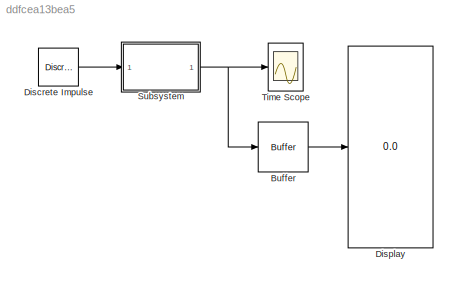
MODEL slx_ddfcea13bea5
KIND model
BLOCK [Buffer] Buffer
  N = 10
BLOCK [Reference] Discrete Impulse  REF=dspsrcs4/Discrete 
Impulse
  Delay = 0
  FrameSample = 1
  LastOutDataTypeStr = double
  OutDataTypeStr = double
  Ports = [0, 1]
  SampleTime = 1
  SourceBlock = dspsrcs4/Discrete \nImpulse
  SourceType = Discrete Impulse
  additionalParams = off
  allowOverrides = on
  dataType = double
  fracBitsMode = Best precision
  isSigned = on
  numFracBits = 15
  udDataType = sfix(16)
  wordLen = 16
BLOCK [Display] Display
  Decimation = 1
  Ports = [1]
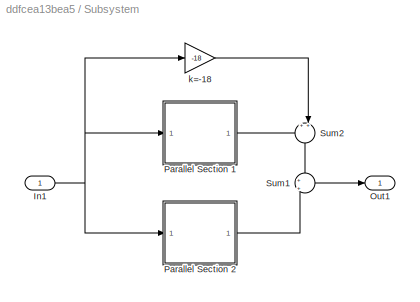
BLOCK [SubSystem] Subsystem
  Ports = [1, 1]
  RequestExecContextInheritance = off
BLOCK [Inport] Subsystem/In1
  IconDisplay = Port number
BLOCK [Outport] Subsystem/Out1
  IconDisplay = Port number
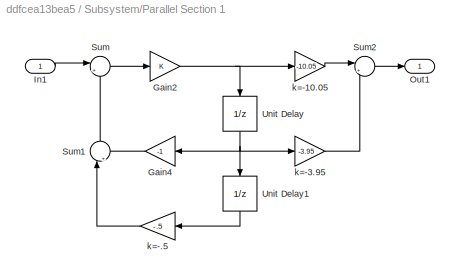
BLOCK [SubSystem] Subsystem/Parallel Section 1
  Ports = [1, 1]
  RequestExecContextInheritance = off
BLOCK [Gain] Subsystem/Parallel Section 1/Gain2
  OutDataTypeStr = Inherit: Inherit via internal rule
  ParamDataTypeStr = Inherit: Inherit via internal rule
  SaturateOnIntegerOverflow = off
BLOCK [Gain] Subsystem/Parallel Section 1/Gain4
  Gain = -1
  OutDataTypeStr = Inherit: Inherit via internal rule
  ParamDataTypeStr = Inherit: Inherit via internal rule
  SaturateOnIntegerOverflow = off
BLOCK [Inport] Subsystem/Parallel Section 1/In1
  IconDisplay = Port number
BLOCK [Outport] Subsystem/Parallel Section 1/Out1
  IconDisplay = Port number
BLOCK [Sum] Subsystem/Parallel Section 1/Sum
  IconShape = round
  InputSameDT = off
  Inputs = |++
  OutDataTypeStr = Inherit: Inherit via internal rule
  Ports = [2, 1]
  SaturateOnIntegerOverflow = off
BLOCK [Sum] Subsystem/Parallel Section 1/Sum1
  IconShape = round
  InputSameDT = off
  Inputs = |++
  OutDataTypeStr = Inherit: Inherit via internal rule
  Ports = [2, 1]
  SaturateOnIntegerOverflow = off
BLOCK [Sum] Subsystem/Parallel Section 1/Sum2
  IconShape = round
  InputSameDT = off
  Inputs = |++
  OutDataTypeStr = Inherit: Inherit via internal rule
  Ports = [2, 1]
  SaturateOnIntegerOverflow = off
BLOCK [UnitDelay] Subsystem/Parallel Section 1/Unit Delay
  SampleTime = -1
BLOCK [UnitDelay] Subsystem/Parallel Section 1/Unit Delay1
  SampleTime = -1
BLOCK [Gain] Subsystem/Parallel Section 1/k=-.5
  Gain = -.5
  OutDataTypeStr = Inherit: Inherit via internal rule
  ParamDataTypeStr = Inherit: Inherit via internal rule
  SaturateOnIntegerOverflow = off
BLOCK [Gain] Subsystem/Parallel Section 1/k=-10.05
  Gain = -10.05
  OutDataTypeStr = Inherit: Inherit via internal rule
  ParamDataTypeStr = Inherit: Inherit via internal rule
  SaturateOnIntegerOverflow = off
BLOCK [Gain] Subsystem/Parallel Section 1/k=-3.95
  Gain = -3.95
  OutDataTypeStr = Inherit: Inherit via internal rule
  ParamDataTypeStr = Inherit: Inherit via internal rule
  SaturateOnIntegerOverflow = off
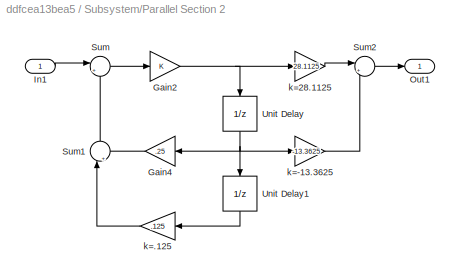
BLOCK [SubSystem] Subsystem/Parallel Section 2
  Ports = [1, 1]
  RequestExecContextInheritance = off
BLOCK [Gain] Subsystem/Parallel Section 2/Gain2
  OutDataTypeStr = Inherit: Inherit via internal rule
  ParamDataTypeStr = Inherit: Inherit via internal rule
  SaturateOnIntegerOverflow = off
BLOCK [Gain] Subsystem/Parallel Section 2/Gain4
  Gain = .25
  OutDataTypeStr = Inherit: Inherit via internal rule
  ParamDataTypeStr = Inherit: Inherit via internal rule
  SaturateOnIntegerOverflow = off
BLOCK [Inport] Subsystem/Parallel Section 2/In1
  IconDisplay = Port number
BLOCK [Outport] Subsystem/Parallel Section 2/Out1
  IconDisplay = Port number
BLOCK [Sum] Subsystem/Parallel Section 2/Sum
  IconShape = round
  InputSameDT = off
  Inputs = |++
  OutDataTypeStr = Inherit: Inherit via internal rule
  Ports = [2, 1]
  SaturateOnIntegerOverflow = off
BLOCK [Sum] Subsystem/Parallel Section 2/Sum1
  IconShape = round
  InputSameDT = off
  Inputs = |++
  OutDataTypeStr = Inherit: Inherit via internal rule
  Ports = [2, 1]
  SaturateOnIntegerOverflow = off
BLOCK [Sum] Subsystem/Parallel Section 2/Sum2
  IconShape = round
  InputSameDT = off
  Inputs = |++
  OutDataTypeStr = Inherit: Inherit via internal rule
  Ports = [2, 1]
  SaturateOnIntegerOverflow = off
BLOCK [UnitDelay] Subsystem/Parallel Section 2/Unit Delay
  SampleTime = -1
BLOCK [UnitDelay] Subsystem/Parallel Section 2/Unit Delay1
  SampleTime = -1
BLOCK [Gain] Subsystem/Parallel Section 2/k=-13.3625
  Gain = -13.3625
  OutDataTypeStr = Inherit: Inherit via internal rule
  ParamDataTypeStr = Inherit: Inherit via internal rule
  SaturateOnIntegerOverflow = off
BLOCK [Gain] Subsystem/Parallel Section 2/k=.125
  Gain = .125
  OutDataTypeStr = Inherit: Inherit via internal rule
  ParamDataTypeStr = Inherit: Inherit via internal rule
  SaturateOnIntegerOverflow = off
BLOCK [Gain] Subsystem/Parallel Section 2/k=28.1125
  Gain = 28.1125
  OutDataTypeStr = Inherit: Inherit via internal rule
  ParamDataTypeStr = Inherit: Inherit via internal rule
  SaturateOnIntegerOverflow = off
BLOCK [Sum] Subsystem/Sum1
  IconShape = round
  InputSameDT = off
  Inputs = +|+
  OutDataTypeStr = Inherit: Inherit via internal rule
  Ports = [2, 1]
  SaturateOnIntegerOverflow = off
BLOCK [Sum] Subsystem/Sum2
  IconShape = round
  InputSameDT = off
  Inputs = ++|
  OutDataTypeStr = Inherit: Inherit via internal rule
  Ports = [2, 1]
  SaturateOnIntegerOverflow = off
BLOCK [Gain] Subsystem/k=-18
  Gain = -18
  OutDataTypeStr = Inherit: Inherit via internal rule
  ParamDataTypeStr = Inherit: Inherit via internal rule
  SaturateOnIntegerOverflow = off
BLOCK [Scope] Time Scope
  DataFormat = Structure
  Floating = off
  NumInputPorts = 1
  Ports = [1]
  SampleTime = 0
  ShowLegends = off
LINE Buffer:1 -> Display:1
LINE Discrete Impulse:1 -> Subsystem:1
NET Subsystem/In1:1 -> Subsystem/Parallel Section 1:1, Subsystem/Parallel Section 2:1, Subsystem/k=-18:1
NET Subsystem/Parallel Section 1/Gain2:1 -> Subsystem/Parallel Section 1/Unit Delay:1, Subsystem/Parallel Section 1/k=-10.05:1
LINE Subsystem/Parallel Section 1/Gain4:1 -> Subsystem/Parallel Section 1/Sum1:2
LINE Subsystem/Parallel Section 1/In1:1 -> Subsystem/Parallel Section 1/Sum:1
LINE Subsystem/Parallel Section 1/Sum1:1 -> Subsystem/Parallel Section 1/Sum:2
LINE Subsystem/Parallel Section 1/Sum2:1 -> Subsystem/Parallel Section 1/Out1:1
LINE Subsystem/Parallel Section 1/Sum:1 -> Subsystem/Parallel Section 1/Gain2:1
LINE Subsystem/Parallel Section 1/Unit Delay1:1 -> Subsystem/Parallel Section 1/k=-.5:1
NET Subsystem/Parallel Section 1/Unit Delay:1 -> Subsystem/Parallel Section 1/Gain4:1, Subsystem/Parallel Section 1/Unit Delay1:1, Subsystem/Parallel Section 1/k=-3.95:1
LINE Subsystem/Parallel Section 1/k=-.5:1 -> Subsystem/Parallel Section 1/Sum1:1
LINE Subsystem/Parallel Section 1/k=-10.05:1 -> Subsystem/Parallel Section 1/Sum2:1
LINE Subsystem/Parallel Section 1/k=-3.95:1 -> Subsystem/Parallel Section 1/Sum2:2
LINE Subsystem/Parallel Section 1:1 -> Subsystem/Sum2:1
NET Subsystem/Parallel Section 2/Gain2:1 -> Subsystem/Parallel Section 2/Unit Delay:1, Subsystem/Parallel Section 2/k=28.1125:1
LINE Subsystem/Parallel Section 2/Gain4:1 -> Subsystem/Parallel Section 2/Sum1:2
LINE Subsystem/Parallel Section 2/In1:1 -> Subsystem/Parallel Section 2/Sum:1
LINE Subsystem/Parallel Section 2/Sum1:1 -> Subsystem/Parallel Section 2/Sum:2
LINE Subsystem/Parallel Section 2/Sum2:1 -> Subsystem/Parallel Section 2/Out1:1
LINE Subsystem/Parallel Section 2/Sum:1 -> Subsystem/Parallel Section 2/Gain2:1
LINE Subsystem/Parallel Section 2/Unit Delay1:1 -> Subsystem/Parallel Section 2/k=.125:1
NET Subsystem/Parallel Section 2/Unit Delay:1 -> Subsystem/Parallel Section 2/Gain4:1, Subsystem/Parallel Section 2/Unit Delay1:1, Subsystem/Parallel Section 2/k=-13.3625:1
LINE Subsystem/Parallel Section 2/k=-13.3625:1 -> Subsystem/Parallel Section 2/Sum2:2
LINE Subsystem/Parallel Section 2/k=.125:1 -> Subsystem/Parallel Section 2/Sum1:1
LINE Subsystem/Parallel Section 2/k=28.1125:1 -> Subsystem/Parallel Section 2/Sum2:1
LINE Subsystem/Parallel Section 2:1 -> Subsystem/Sum1:2
LINE Subsystem/Sum1:1 -> Subsystem/Out1:1
LINE Subsystem/Sum2:1 -> Subsystem/Sum1:1
LINE Subsystem/k=-18:1 -> Subsystem/Sum2:2
NET Subsystem:1 -> Buffer:1, Time Scope:1
note: NET lines group one-source signal fan-out (src -> all destinations, sorted); 1:1 wires keep LINE
